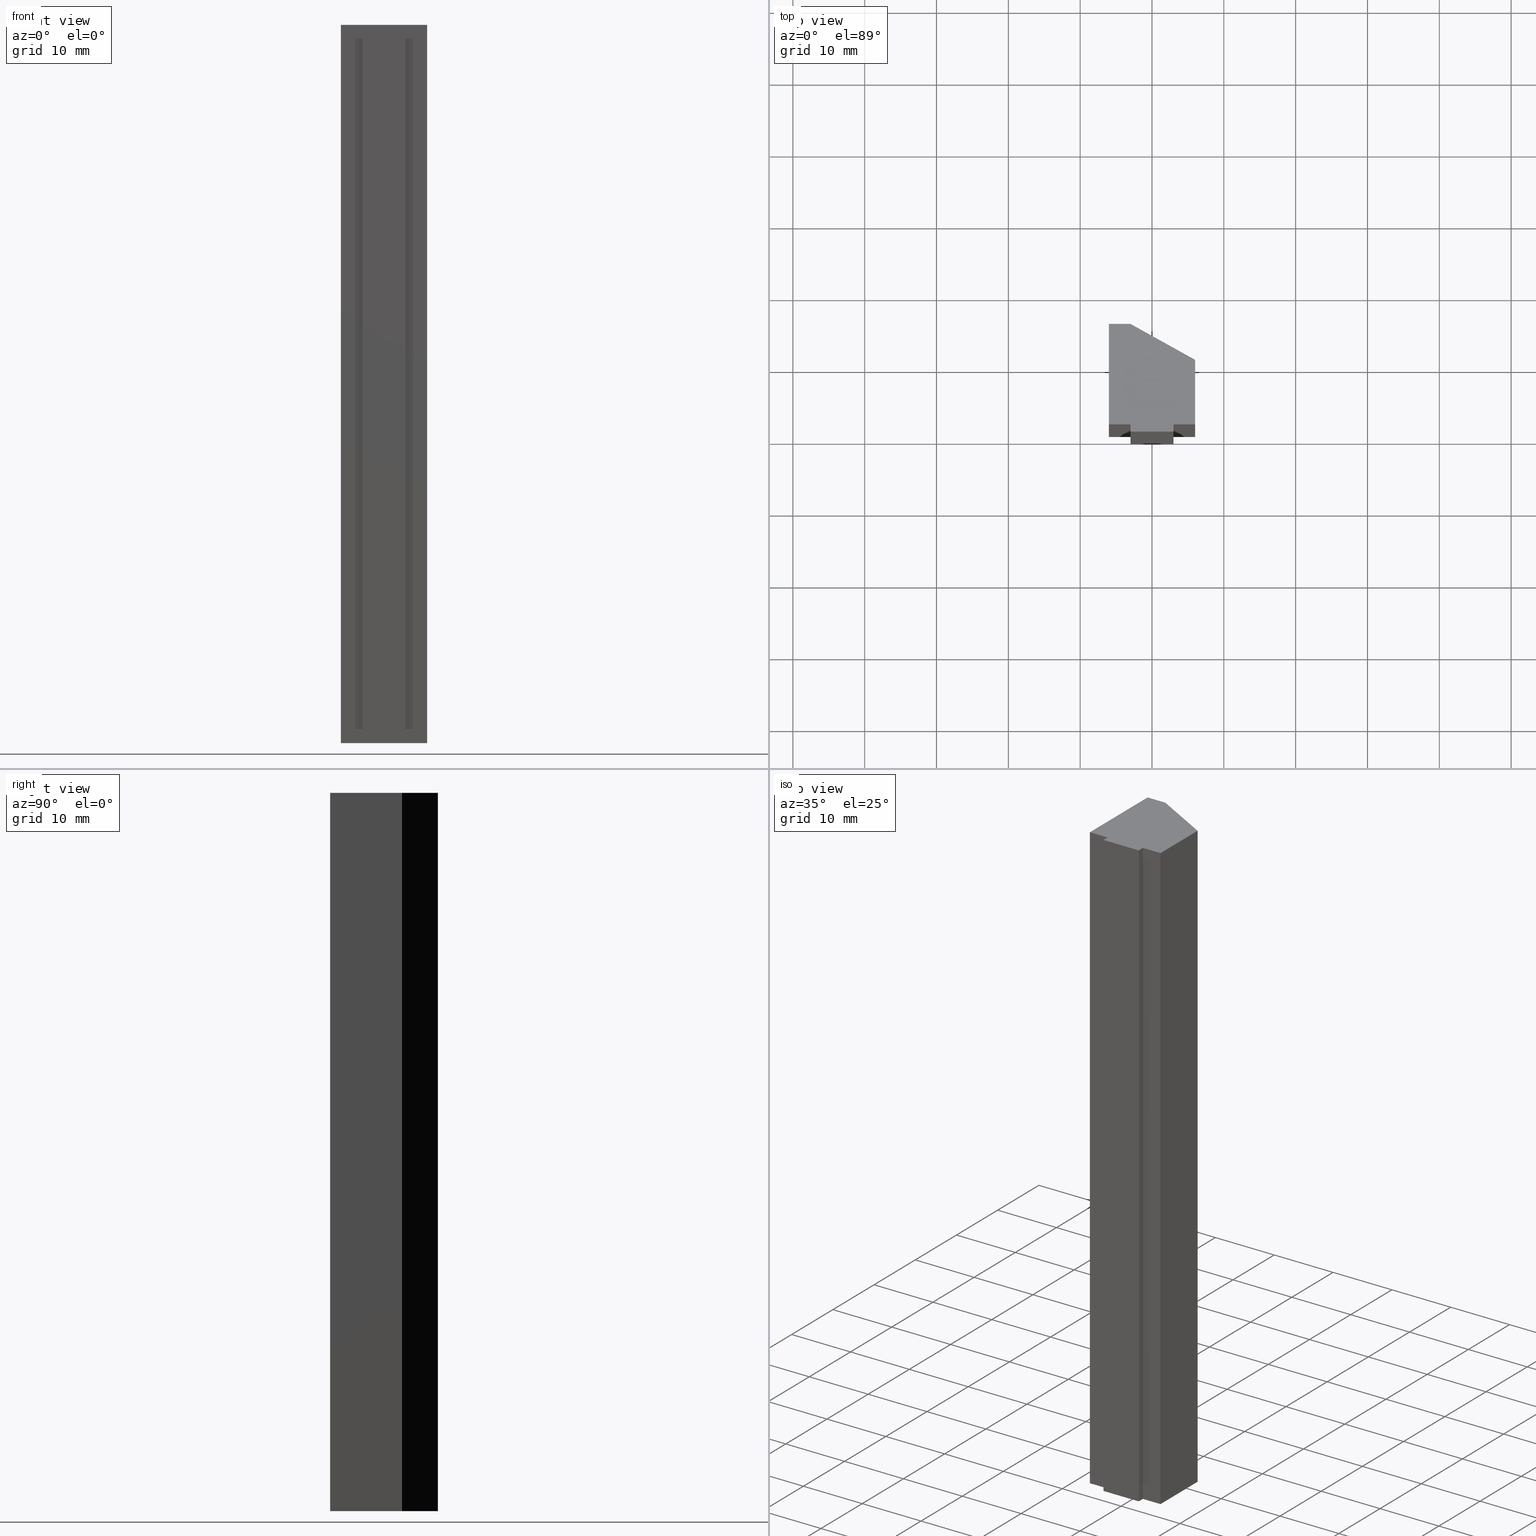
[diagram: canonical four-view strip — front | top / right | iso, engineering-drawing reading convention]
A machine part, canonical four-view strip (front | top / right | iso — engineering-drawing reading convention). The complete STEP part file that produces these views, byte-faithful:
ISO-10303-21;
HEADER;
/* Generated by software containing ST-Developer
 * from STEP Tools, Inc. (www.steptools.com) 
 */

FILE_DESCRIPTION(
/* description */ (''),
/* implementation_level */ '2;1');

FILE_NAME(
/* name */ 
'H:\\Eigene Dateien\\CAD Workspace Vault\\CAD\\E_3_Nocken\\E_3_01_Aufs
chwei\X\DFnocke\\06_Trapez\\E_3_01_06_06_00_WKZ-0022.stp',
/* time_stamp */ '2024-06-07T13:06:45+02:00',
/* author */ ('DFischer'),
/* organization */ (''),
/* preprocessor_version */ 'ST-DEVELOPER v18.1',
/* originating_system */ 'Autodesk Inventor 2021',
/* authorisation */ '');

FILE_SCHEMA (('AUTOMOTIVE_DESIGN { 1 0 10303 214 3 1 1 }'));
ENDSEC;

DATA;
#10=MECHANICAL_DESIGN_GEOMETRIC_PRESENTATION_REPRESENTATION('',(#14,#15),
#355);
#11=SHAPE_REPRESENTATION_RELATIONSHIP('SRR','None',#362,#12);
#12=ADVANCED_BREP_SHAPE_REPRESENTATION('',(#13),#354);
#13=MANIFOLD_SOLID_BREP('Volumenk\X\F6rper1',#213);
#14=STYLED_ITEM('',(#372),#204);
#15=STYLED_ITEM('',(#371),#13);
#16=FACE_OUTER_BOUND('',#27,.T.);
#17=FACE_OUTER_BOUND('',#28,.T.);
#18=FACE_OUTER_BOUND('',#29,.T.);
#19=FACE_OUTER_BOUND('',#30,.T.);
#20=FACE_OUTER_BOUND('',#31,.T.);
#21=FACE_OUTER_BOUND('',#32,.T.);
#22=FACE_OUTER_BOUND('',#33,.T.);
#23=FACE_OUTER_BOUND('',#34,.T.);
#24=FACE_OUTER_BOUND('',#35,.T.);
#25=FACE_OUTER_BOUND('',#36,.T.);
#26=FACE_OUTER_BOUND('',#37,.T.);
#27=EDGE_LOOP('',(#137,#138,#139,#140,#141,#142,#143,#144,#145));
#28=EDGE_LOOP('',(#146,#147,#148,#149));
#29=EDGE_LOOP('',(#150,#151,#152,#153));
#30=EDGE_LOOP('',(#154,#155,#156,#157));
#31=EDGE_LOOP('',(#158,#159,#160,#161));
#32=EDGE_LOOP('',(#162,#163,#164,#165));
#33=EDGE_LOOP('',(#166,#167,#168,#169));
#34=EDGE_LOOP('',(#170,#171,#172,#173));
#35=EDGE_LOOP('',(#174,#175,#176,#177));
#36=EDGE_LOOP('',(#178,#179,#180,#181));
#37=EDGE_LOOP('',(#182,#183,#184,#185,#186,#187,#188,#189,#190));
#38=LINE('',#299,#65);
#39=LINE('',#301,#66);
#40=LINE('',#303,#67);
#41=LINE('',#305,#68);
#42=LINE('',#307,#69);
#43=LINE('',#309,#70);
#44=LINE('',#311,#71);
#45=LINE('',#313,#72);
#46=LINE('',#314,#73);
#47=LINE('',#318,#74);
#48=LINE('',#319,#75);
#49=LINE('',#320,#76);
#50=LINE('',#323,#77);
#51=LINE('',#324,#78);
#52=LINE('',#327,#79);
#53=LINE('',#328,#80);
#54=LINE('',#331,#81);
#55=LINE('',#332,#82);
#56=LINE('',#335,#83);
#57=LINE('',#336,#84);
#58=LINE('',#339,#85);
#59=LINE('',#340,#86);
#60=LINE('',#343,#87);
#61=LINE('',#344,#88);
#62=LINE('',#347,#89);
#63=LINE('',#348,#90);
#64=LINE('',#350,#91);
#65=VECTOR('',#248,10.);
#66=VECTOR('',#249,10.);
#67=VECTOR('',#250,10.);
#68=VECTOR('',#251,10.);
#69=VECTOR('',#252,10.);
#70=VECTOR('',#253,10.);
#71=VECTOR('',#254,10.);
#72=VECTOR('',#255,10.);
#73=VECTOR('',#256,10.);
#74=VECTOR('',#259,10.);
#75=VECTOR('',#260,10.);
#76=VECTOR('',#261,10.);
#77=VECTOR('',#264,10.);
#78=VECTOR('',#265,10.);
#79=VECTOR('',#268,10.);
#80=VECTOR('',#269,10.);
#81=VECTOR('',#272,10.);
#82=VECTOR('',#273,10.);
#83=VECTOR('',#276,10.);
#84=VECTOR('',#277,10.);
#85=VECTOR('',#280,10.);
#86=VECTOR('',#281,10.);
#87=VECTOR('',#284,10.);
#88=VECTOR('',#285,10.);
#89=VECTOR('',#288,10.);
#90=VECTOR('',#289,10.);
#91=VECTOR('',#292,10.);
#92=VERTEX_POINT('',#297);
#93=VERTEX_POINT('',#298);
#94=VERTEX_POINT('',#300);
#95=VERTEX_POINT('',#302);
#96=VERTEX_POINT('',#304);
#97=VERTEX_POINT('',#306);
#98=VERTEX_POINT('',#308);
#99=VERTEX_POINT('',#310);
#100=VERTEX_POINT('',#312);
#101=VERTEX_POINT('',#316);
#102=VERTEX_POINT('',#317);
#103=VERTEX_POINT('',#322);
#104=VERTEX_POINT('',#326);
#105=VERTEX_POINT('',#330);
#106=VERTEX_POINT('',#334);
#107=VERTEX_POINT('',#338);
#108=VERTEX_POINT('',#342);
#109=VERTEX_POINT('',#346);
#110=EDGE_CURVE('',#92,#93,#38,.T.);
#111=EDGE_CURVE('',#94,#92,#39,.T.);
#112=EDGE_CURVE('',#95,#94,#40,.T.);
#113=EDGE_CURVE('',#96,#95,#41,.T.);
#114=EDGE_CURVE('',#97,#96,#42,.T.);
#115=EDGE_CURVE('',#98,#97,#43,.T.);
#116=EDGE_CURVE('',#99,#98,#44,.T.);
#117=EDGE_CURVE('',#100,#99,#45,.T.);
#118=EDGE_CURVE('',#93,#100,#46,.T.);
#119=EDGE_CURVE('',#101,#102,#47,.T.);
#120=EDGE_CURVE('',#102,#95,#48,.T.);
#121=EDGE_CURVE('',#101,#94,#49,.T.);
#122=EDGE_CURVE('',#102,#103,#50,.T.);
#123=EDGE_CURVE('',#103,#96,#51,.T.);
#124=EDGE_CURVE('',#103,#104,#52,.T.);
#125=EDGE_CURVE('',#104,#97,#53,.T.);
#126=EDGE_CURVE('',#104,#105,#54,.T.);
#127=EDGE_CURVE('',#105,#98,#55,.T.);
#128=EDGE_CURVE('',#105,#106,#56,.T.);
#129=EDGE_CURVE('',#106,#99,#57,.T.);
#130=EDGE_CURVE('',#106,#107,#58,.T.);
#131=EDGE_CURVE('',#107,#100,#59,.T.);
#132=EDGE_CURVE('',#107,#108,#60,.T.);
#133=EDGE_CURVE('',#108,#93,#61,.T.);
#134=EDGE_CURVE('',#108,#109,#62,.T.);
#135=EDGE_CURVE('',#92,#109,#63,.T.);
#136=EDGE_CURVE('',#109,#101,#64,.T.);
#137=ORIENTED_EDGE('',*,*,#110,.F.);
#138=ORIENTED_EDGE('',*,*,#111,.F.);
#139=ORIENTED_EDGE('',*,*,#112,.F.);
#140=ORIENTED_EDGE('',*,*,#113,.F.);
#141=ORIENTED_EDGE('',*,*,#114,.F.);
#142=ORIENTED_EDGE('',*,*,#115,.F.);
#143=ORIENTED_EDGE('',*,*,#116,.F.);
#144=ORIENTED_EDGE('',*,*,#117,.F.);
#145=ORIENTED_EDGE('',*,*,#118,.F.);
#146=ORIENTED_EDGE('',*,*,#119,.T.);
#147=ORIENTED_EDGE('',*,*,#120,.T.);
#148=ORIENTED_EDGE('',*,*,#112,.T.);
#149=ORIENTED_EDGE('',*,*,#121,.F.);
#150=ORIENTED_EDGE('',*,*,#122,.T.);
#151=ORIENTED_EDGE('',*,*,#123,.T.);
#152=ORIENTED_EDGE('',*,*,#113,.T.);
#153=ORIENTED_EDGE('',*,*,#120,.F.);
#154=ORIENTED_EDGE('',*,*,#124,.T.);
#155=ORIENTED_EDGE('',*,*,#125,.T.);
#156=ORIENTED_EDGE('',*,*,#114,.T.);
#157=ORIENTED_EDGE('',*,*,#123,.F.);
#158=ORIENTED_EDGE('',*,*,#126,.T.);
#159=ORIENTED_EDGE('',*,*,#127,.T.);
#160=ORIENTED_EDGE('',*,*,#115,.T.);
#161=ORIENTED_EDGE('',*,*,#125,.F.);
#162=ORIENTED_EDGE('',*,*,#128,.T.);
#163=ORIENTED_EDGE('',*,*,#129,.T.);
#164=ORIENTED_EDGE('',*,*,#116,.T.);
#165=ORIENTED_EDGE('',*,*,#127,.F.);
#166=ORIENTED_EDGE('',*,*,#130,.T.);
#167=ORIENTED_EDGE('',*,*,#131,.T.);
#168=ORIENTED_EDGE('',*,*,#117,.T.);
#169=ORIENTED_EDGE('',*,*,#129,.F.);
#170=ORIENTED_EDGE('',*,*,#132,.T.);
#171=ORIENTED_EDGE('',*,*,#133,.T.);
#172=ORIENTED_EDGE('',*,*,#118,.T.);
#173=ORIENTED_EDGE('',*,*,#131,.F.);
#174=ORIENTED_EDGE('',*,*,#134,.T.);
#175=ORIENTED_EDGE('',*,*,#135,.F.);
#176=ORIENTED_EDGE('',*,*,#110,.T.);
#177=ORIENTED_EDGE('',*,*,#133,.F.);
#178=ORIENTED_EDGE('',*,*,#136,.T.);
#179=ORIENTED_EDGE('',*,*,#121,.T.);
#180=ORIENTED_EDGE('',*,*,#111,.T.);
#181=ORIENTED_EDGE('',*,*,#135,.T.);
#182=ORIENTED_EDGE('',*,*,#119,.F.);
#183=ORIENTED_EDGE('',*,*,#136,.F.);
#184=ORIENTED_EDGE('',*,*,#134,.F.);
#185=ORIENTED_EDGE('',*,*,#132,.F.);
#186=ORIENTED_EDGE('',*,*,#130,.F.);
#187=ORIENTED_EDGE('',*,*,#128,.F.);
#188=ORIENTED_EDGE('',*,*,#126,.F.);
#189=ORIENTED_EDGE('',*,*,#124,.F.);
#190=ORIENTED_EDGE('',*,*,#122,.F.);
#191=PLANE('',#233);
#192=PLANE('',#234);
#193=PLANE('',#235);
#194=PLANE('',#236);
#195=PLANE('',#237);
#196=PLANE('',#238);
#197=PLANE('',#239);
#198=PLANE('',#240);
#199=PLANE('',#241);
#200=PLANE('',#242);
#201=PLANE('',#243);
#202=ADVANCED_FACE('',(#16),#191,.F.);
#203=ADVANCED_FACE('',(#17),#192,.T.);
#204=ADVANCED_FACE('',(#18),#193,.T.);
#205=ADVANCED_FACE('',(#19),#194,.T.);
#206=ADVANCED_FACE('',(#20),#195,.T.);
#207=ADVANCED_FACE('',(#21),#196,.T.);
#208=ADVANCED_FACE('',(#22),#197,.T.);
#209=ADVANCED_FACE('',(#23),#198,.T.);
#210=ADVANCED_FACE('',(#24),#199,.T.);
#211=ADVANCED_FACE('',(#25),#200,.T.);
#212=ADVANCED_FACE('',(#26),#201,.T.);
#213=CLOSED_SHELL('',(#202,#203,#204,#205,#206,#207,#208,#209,#210,#211,
#212));
#214=DERIVED_UNIT_ELEMENT(#216,1.);
#215=DERIVED_UNIT_ELEMENT(#357,3.);
#216=(
MASS_UNIT()
NAMED_UNIT(*)
SI_UNIT($,.GRAM.)
);
#217=DERIVED_UNIT((#214,#215));
#218=MEASURE_REPRESENTATION_ITEM('density measure',
POSITIVE_RATIO_MEASURE(8.03),#217);
#219=PROPERTY_DEFINITION_REPRESENTATION(#224,#221);
#220=PROPERTY_DEFINITION_REPRESENTATION(#225,#222);
#221=REPRESENTATION('material name',(#223),#354);
#222=REPRESENTATION('density',(#218),#354);
#223=DESCRIPTIVE_REPRESENTATION_ITEM('1.4301','1.4301');
#224=PROPERTY_DEFINITION('material property','material name',#364);
#225=PROPERTY_DEFINITION('material property','density of part',#364);
#226=DATE_TIME_ROLE('creation_date');
#227=APPLIED_DATE_AND_TIME_ASSIGNMENT(#228,#226,(#364));
#228=DATE_AND_TIME(#229,#230);
#229=CALENDAR_DATE(2011,19,10);
#230=LOCAL_TIME(0,0,0.,#231);
#231=COORDINATED_UNIVERSAL_TIME_OFFSET(0,0,.BEHIND.);
#232=AXIS2_PLACEMENT_3D('placement',#295,#244,#245);
#233=AXIS2_PLACEMENT_3D('',#296,#246,#247);
#234=AXIS2_PLACEMENT_3D('',#315,#257,#258);
#235=AXIS2_PLACEMENT_3D('',#321,#262,#263);
#236=AXIS2_PLACEMENT_3D('',#325,#266,#267);
#237=AXIS2_PLACEMENT_3D('',#329,#270,#271);
#238=AXIS2_PLACEMENT_3D('',#333,#274,#275);
#239=AXIS2_PLACEMENT_3D('',#337,#278,#279);
#240=AXIS2_PLACEMENT_3D('',#341,#282,#283);
#241=AXIS2_PLACEMENT_3D('',#345,#286,#287);
#242=AXIS2_PLACEMENT_3D('',#349,#290,#291);
#243=AXIS2_PLACEMENT_3D('',#351,#293,#294);
#244=DIRECTION('axis',(0.,0.,1.));
#245=DIRECTION('refdir',(1.,0.,0.));
#246=DIRECTION('center_axis',(0.,0.,1.));
#247=DIRECTION('ref_axis',(1.,0.,0.));
#248=DIRECTION('',(0.,1.,0.));
#249=DIRECTION('',(1.,-1.38777878078145E-16,0.));
#250=DIRECTION('',(0.,1.,0.));
#251=DIRECTION('',(1.,0.,0.));
#252=DIRECTION('',(0.,-1.,0.));
#253=DIRECTION('',(1.,1.38777878078145E-16,0.));
#254=DIRECTION('',(2.37904933848248E-16,-1.,0.));
#255=DIRECTION('',(-1.,0.,0.));
#256=DIRECTION('',(-0.874157276121538,0.485642931178632,0.));
#257=DIRECTION('center_axis',(1.,0.,0.));
#258=DIRECTION('ref_axis',(0.,0.,-1.));
#259=DIRECTION('',(0.,-1.,0.));
#260=DIRECTION('',(0.,0.,-1.));
#261=DIRECTION('',(0.,0.,-1.));
#262=DIRECTION('center_axis',(0.,-1.,0.));
#263=DIRECTION('ref_axis',(0.,0.,-1.));
#264=DIRECTION('',(-1.,0.,0.));
#265=DIRECTION('',(0.,0.,-1.));
#266=DIRECTION('center_axis',(-1.,0.,0.));
#267=DIRECTION('ref_axis',(0.,0.,1.));
#268=DIRECTION('',(0.,1.,0.));
#269=DIRECTION('',(0.,0.,-1.));
#270=DIRECTION('center_axis',(1.38777878078145E-16,-1.,0.));
#271=DIRECTION('ref_axis',(0.,0.,-1.));
#272=DIRECTION('',(-1.,-1.38777878078145E-16,0.));
#273=DIRECTION('',(0.,0.,-1.));
#274=DIRECTION('center_axis',(-1.,-2.37904933848248E-16,0.));
#275=DIRECTION('ref_axis',(0.,0.,1.));
#276=DIRECTION('',(-2.37904933848248E-16,1.,0.));
#277=DIRECTION('',(0.,0.,-1.));
#278=DIRECTION('center_axis',(0.,1.,0.));
#279=DIRECTION('ref_axis',(0.,0.,1.));
#280=DIRECTION('',(1.,0.,0.));
#281=DIRECTION('',(0.,0.,-1.));
#282=DIRECTION('center_axis',(0.485642931178632,0.874157276121538,0.));
#283=DIRECTION('ref_axis',(0.,0.,1.));
#284=DIRECTION('',(0.874157276121538,-0.485642931178632,0.));
#285=DIRECTION('',(0.,0.,-1.));
#286=DIRECTION('center_axis',(1.,0.,0.));
#287=DIRECTION('ref_axis',(0.,0.,-1.));
#288=DIRECTION('',(0.,-1.,0.));
#289=DIRECTION('',(0.,0.,1.));
#290=DIRECTION('center_axis',(-1.38777878078145E-16,-1.,0.));
#291=DIRECTION('ref_axis',(0.,0.,-1.));
#292=DIRECTION('',(-1.,1.38777878078145E-16,0.));
#293=DIRECTION('center_axis',(0.,0.,1.));
#294=DIRECTION('ref_axis',(1.,0.,0.));
#295=CARTESIAN_POINT('',(0.,0.,0.));
#296=CARTESIAN_POINT('Origin',(-0.557832851678613,6.80368007723747,-50.));
#297=CARTESIAN_POINT('',(6.,0.999999999999999,-50.));
#298=CARTESIAN_POINT('',(6.,10.,-50.));
#299=CARTESIAN_POINT('',(6.,10.,-50.));
#300=CARTESIAN_POINT('',(3.,1.,-50.));
#301=CARTESIAN_POINT('',(6.,0.999999999999999,-50.));
#302=CARTESIAN_POINT('',(3.,-1.11022302462516E-15,-50.));
#303=CARTESIAN_POINT('',(3.,1.,-50.));
#304=CARTESIAN_POINT('',(-3.,-1.11022302462516E-15,-50.));
#305=CARTESIAN_POINT('',(3.,-1.11022302462516E-15,-50.));
#306=CARTESIAN_POINT('',(-3.,1.,-50.));
#307=CARTESIAN_POINT('',(-3.,-1.11022302462516E-15,-50.));
#308=CARTESIAN_POINT('',(-6.,0.999999999999999,-50.));
#309=CARTESIAN_POINT('',(-3.,1.,-50.));
#310=CARTESIAN_POINT('',(-6.,15.,-50.));
#311=CARTESIAN_POINT('',(-6.,0.999999999999999,-50.));
#312=CARTESIAN_POINT('',(-3.,15.,-50.));
#313=CARTESIAN_POINT('',(-6.,15.,-50.));
#314=CARTESIAN_POINT('',(-3.,15.,-50.));
#315=CARTESIAN_POINT('Origin',(3.,1.,0.));
#316=CARTESIAN_POINT('',(3.,1.,50.));
#317=CARTESIAN_POINT('',(3.,-1.11022302462516E-15,50.));
#318=CARTESIAN_POINT('',(3.,1.,50.));
#319=CARTESIAN_POINT('',(3.,-1.11022302462516E-15,0.));
#320=CARTESIAN_POINT('',(3.,1.,0.));
#321=CARTESIAN_POINT('Origin',(3.,-1.11022302462516E-15,0.));
#322=CARTESIAN_POINT('',(-3.,-1.11022302462516E-15,50.));
#323=CARTESIAN_POINT('',(3.,-1.11022302462516E-15,50.));
#324=CARTESIAN_POINT('',(-3.,-1.11022302462516E-15,0.));
#325=CARTESIAN_POINT('Origin',(-3.,-1.11022302462516E-15,0.));
#326=CARTESIAN_POINT('',(-3.,1.,50.));
#327=CARTESIAN_POINT('',(-3.,-1.11022302462516E-15,50.));
#328=CARTESIAN_POINT('',(-3.,1.,0.));
#329=CARTESIAN_POINT('Origin',(-3.,1.,0.));
#330=CARTESIAN_POINT('',(-6.,0.999999999999999,50.));
#331=CARTESIAN_POINT('',(-3.,1.,50.));
#332=CARTESIAN_POINT('',(-6.,0.999999999999999,0.));
#333=CARTESIAN_POINT('Origin',(-6.,0.999999999999999,0.));
#334=CARTESIAN_POINT('',(-6.,15.,50.));
#335=CARTESIAN_POINT('',(-6.,0.999999999999999,50.));
#336=CARTESIAN_POINT('',(-6.,15.,0.));
#337=CARTESIAN_POINT('Origin',(-6.,15.,0.));
#338=CARTESIAN_POINT('',(-3.,15.,50.));
#339=CARTESIAN_POINT('',(-6.,15.,50.));
#340=CARTESIAN_POINT('',(-3.,15.,0.));
#341=CARTESIAN_POINT('Origin',(-3.,15.,0.));
#342=CARTESIAN_POINT('',(6.,10.,50.));
#343=CARTESIAN_POINT('',(-3.,15.,50.));
#344=CARTESIAN_POINT('',(6.,10.,0.));
#345=CARTESIAN_POINT('Origin',(6.,10.,0.));
#346=CARTESIAN_POINT('',(6.,0.999999999999999,50.));
#347=CARTESIAN_POINT('',(6.,10.,50.));
#348=CARTESIAN_POINT('',(6.,0.999999999999999,0.));
#349=CARTESIAN_POINT('Origin',(6.,0.999999999999999,0.));
#350=CARTESIAN_POINT('',(6.,0.999999999999999,50.));
#351=CARTESIAN_POINT('Origin',(-0.557832851678613,6.80368007723747,50.));
#352=UNCERTAINTY_MEASURE_WITH_UNIT(LENGTH_MEASURE(0.01),#356,
'DISTANCE_ACCURACY_VALUE',
'Maximum model space distance between geometric entities at asserted c
onnectivities');
#353=UNCERTAINTY_MEASURE_WITH_UNIT(LENGTH_MEASURE(0.01),#356,
'DISTANCE_ACCURACY_VALUE',
'Maximum model space distance between geometric entities at asserted c
onnectivities');
#354=(
GEOMETRIC_REPRESENTATION_CONTEXT(3)
GLOBAL_UNCERTAINTY_ASSIGNED_CONTEXT((#352))
GLOBAL_UNIT_ASSIGNED_CONTEXT((#356,#358,#359))
REPRESENTATION_CONTEXT('','3D')
);
#355=(
GEOMETRIC_REPRESENTATION_CONTEXT(3)
GLOBAL_UNCERTAINTY_ASSIGNED_CONTEXT((#353))
GLOBAL_UNIT_ASSIGNED_CONTEXT((#356,#358,#359))
REPRESENTATION_CONTEXT('','3D')
);
#356=(
LENGTH_UNIT()
NAMED_UNIT(*)
SI_UNIT(.MILLI.,.METRE.)
);
#357=(
LENGTH_UNIT()
NAMED_UNIT(*)
SI_UNIT(.CENTI.,.METRE.)
);
#358=(
NAMED_UNIT(*)
PLANE_ANGLE_UNIT()
SI_UNIT($,.RADIAN.)
);
#359=(
NAMED_UNIT(*)
SI_UNIT($,.STERADIAN.)
SOLID_ANGLE_UNIT()
);
#360=SHAPE_DEFINITION_REPRESENTATION(#361,#362);
#361=PRODUCT_DEFINITION_SHAPE('',$,#364);
#362=SHAPE_REPRESENTATION('',(#232),#354);
#363=PRODUCT_DEFINITION_CONTEXT('part definition',#368,'design');
#364=PRODUCT_DEFINITION('WKZ-0022','E_3_01_06_06_00_WKZ-0022',#365,#363);
#365=PRODUCT_DEFINITION_FORMATION('',$,#370);
#366=PRODUCT_RELATED_PRODUCT_CATEGORY('E_3_01_06_06_00_WKZ-0022',
'E_3_01_06_06_00_WKZ-0022',(#370));
#367=APPLICATION_PROTOCOL_DEFINITION('international standard',
'automotive_design',2009,#368);
#368=APPLICATION_CONTEXT(
'Core Data for Automotive Mechanical Design Process');
#369=PRODUCT_CONTEXT('part definition',#368,'mechanical');
#370=PRODUCT('WKZ-0022','E_3_01_06_06_00_WKZ-0022',$,(#369));
#371=PRESENTATION_STYLE_ASSIGNMENT((#373));
#372=PRESENTATION_STYLE_ASSIGNMENT((#374));
#373=SURFACE_STYLE_USAGE(.BOTH.,#377);
#374=SURFACE_STYLE_USAGE(.BOTH.,#378);
#375=SURFACE_STYLE_RENDERING_WITH_PROPERTIES($,#385,(#376));
#376=SURFACE_STYLE_TRANSPARENT(0.);
#377=SURFACE_SIDE_STYLE('',(#379,#375));
#378=SURFACE_SIDE_STYLE('',(#380));
#379=SURFACE_STYLE_FILL_AREA(#381);
#380=SURFACE_STYLE_FILL_AREA(#382);
#381=FILL_AREA_STYLE('',(#383));
#382=FILL_AREA_STYLE('',(#384));
#383=FILL_AREA_STYLE_COLOUR('',#385);
#384=FILL_AREA_STYLE_COLOUR('',#386);
#385=COLOUR_RGB('',0.92156862745098,0.92156862745098,0.92156862745098);
#386=COLOUR_RGB('',0.16078431372549,0.16078431372549,0.16078431372549);
ENDSEC;
END-ISO-10303-21;
